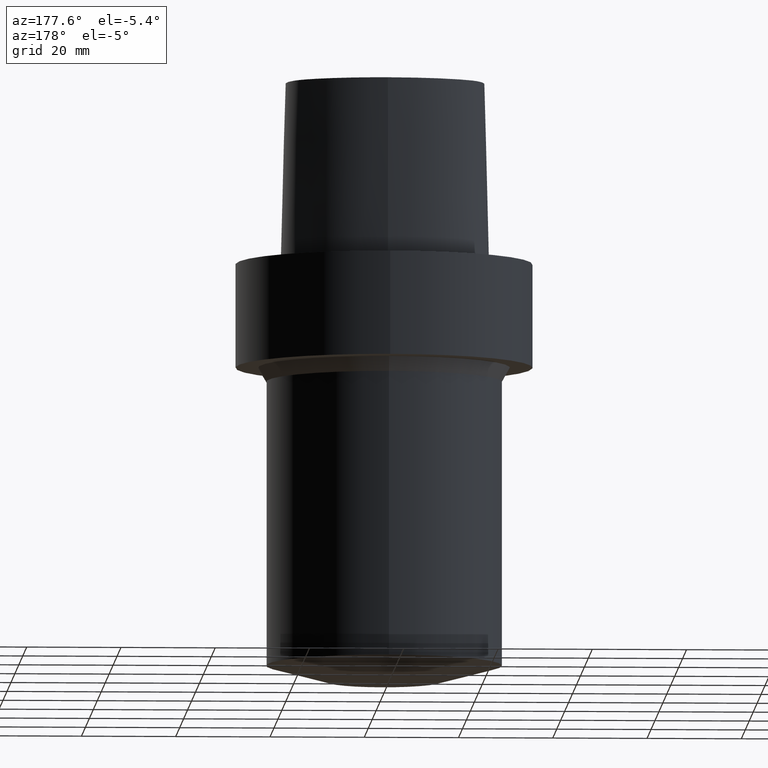
[diagram: clean part render]
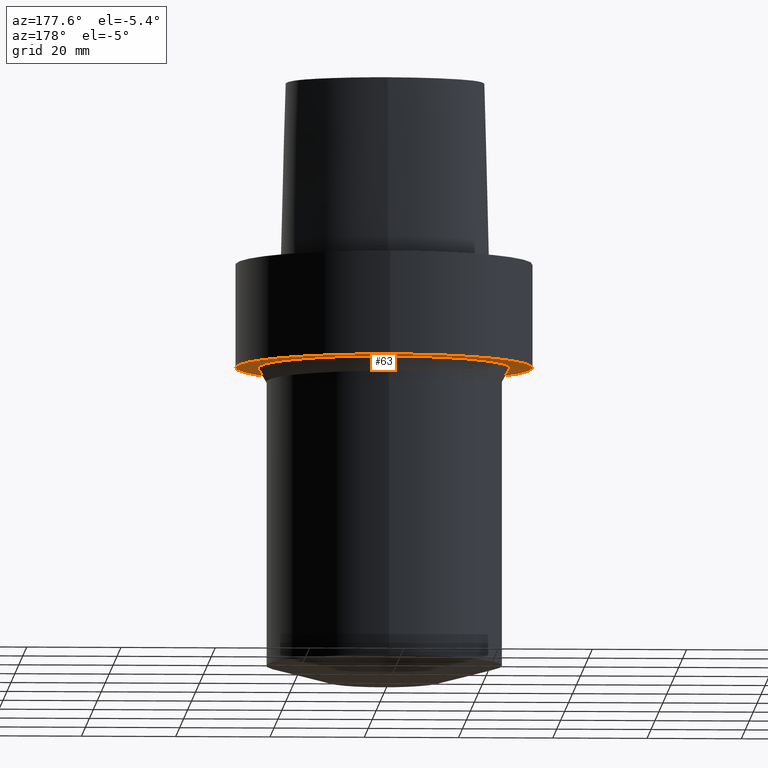
[diagram: same view with one face highlighted and labeled with its STEP entity id]
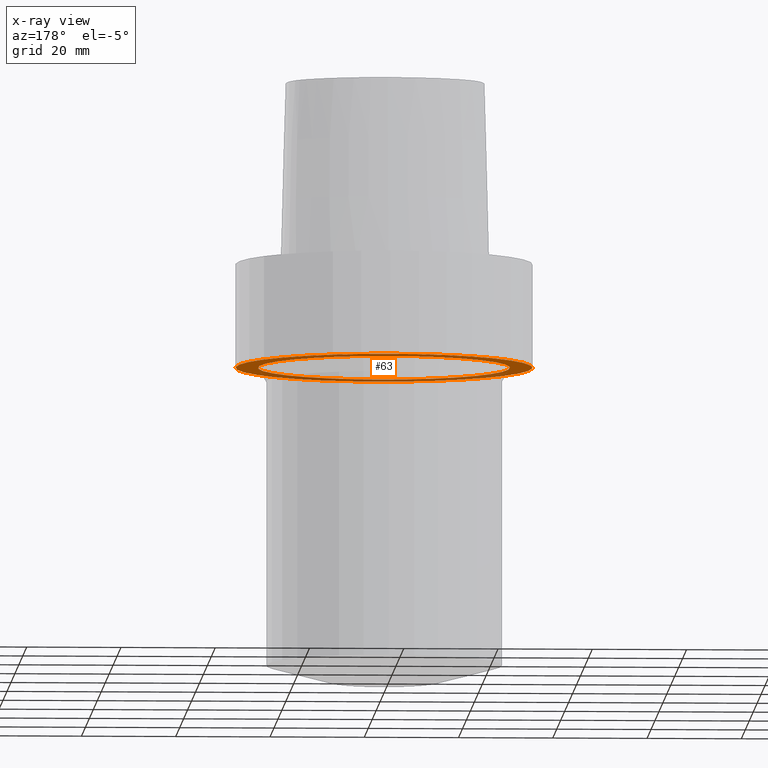
[diagram: x-ray of the same camera — body ghosted, the highlighted face saturated]
A machine part, auxiliary view. The second image highlights one B-rep face of the part: STEP entity #63.
The next image is the same camera in x-ray: the body ghosted, the highlighted face saturated — about 34% of this face is hidden behind the body in this view.
In plain terms, the highlighted planar face has unit normal (0, 0, -1).
Its self-contained STEP definition (entity closure, byte-faithful):
#63=ADVANCED_FACE('Unnamed[1]',(#150,#151),#152,.T.);
#77=EDGE_CURVE('Unnamed[1]',#172,#172,#173,.T.);
#107=EDGE_CURVE('Unnamed[1]',#213,#213,#214,.T.);
#150=FACE_BOUND('',#343,.T.);
#151=FACE_OUTER_BOUND('',#344,.T.);
#152=PLANE('',#345);
#172=VERTEX_POINT('',#402);
#173=CIRCLE('',#403,26.7320508073061);
#213=VERTEX_POINT('',#538);
#214=CIRCLE('',#539,31.5);
#343=EDGE_LOOP('',(#565));
#344=EDGE_LOOP('',(#566));
#345=AXIS2_PLACEMENT_3D('',#567,#568,#569);
#402=CARTESIAN_POINT('',(1.34711147906209E-015,26.7320508073061,-22.0));
#403=AXIS2_PLACEMENT_3D('',#584,#585,#586);
#538=CARTESIAN_POINT('',(1.34711147906209E-015,31.5,-22.0));
#539=AXIS2_PLACEMENT_3D('',#628,#629,#630);
#565=ORIENTED_EDGE('',*,*,#77,.F.);
#566=ORIENTED_EDGE('',*,*,#107,.T.);
#567=CARTESIAN_POINT('',(1.34711147906209E-015,29.1160254036531,-22.0));
#568=DIRECTION('',(6.12323399573677E-017,1.22464679914735E-016,-1.0));
#569=DIRECTION('',(-1.23259516440783E-032,1.0,1.22464679914735E-016));
#584=CARTESIAN_POINT('',(1.34711147906209E-015,2.69422295812418E-015,-22.0));
#585=DIRECTION('',(6.12323399573677E-017,1.22464679914735E-016,-1.0));
#586=DIRECTION('',(-1.23259516440783E-032,1.0,1.22464679914735E-016));
#628=CARTESIAN_POINT('',(1.34711147906209E-015,2.69422295812418E-015,-22.0));
#629=DIRECTION('',(6.12323399573677E-017,1.22464679914735E-016,-1.0));
#630=DIRECTION('',(-1.23259516440783E-032,1.0,1.22464679914735E-016));